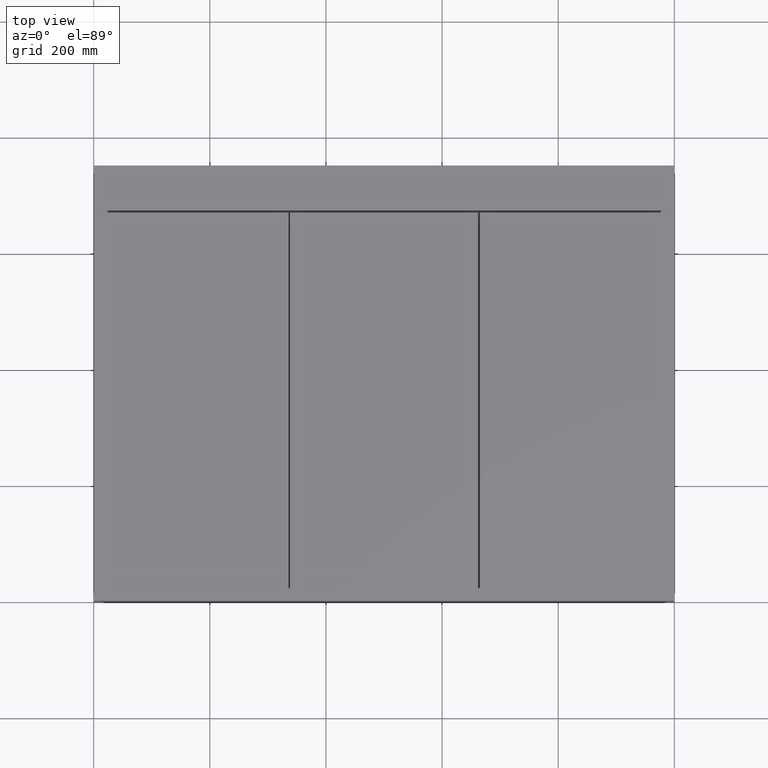
[diagram: clean part render]
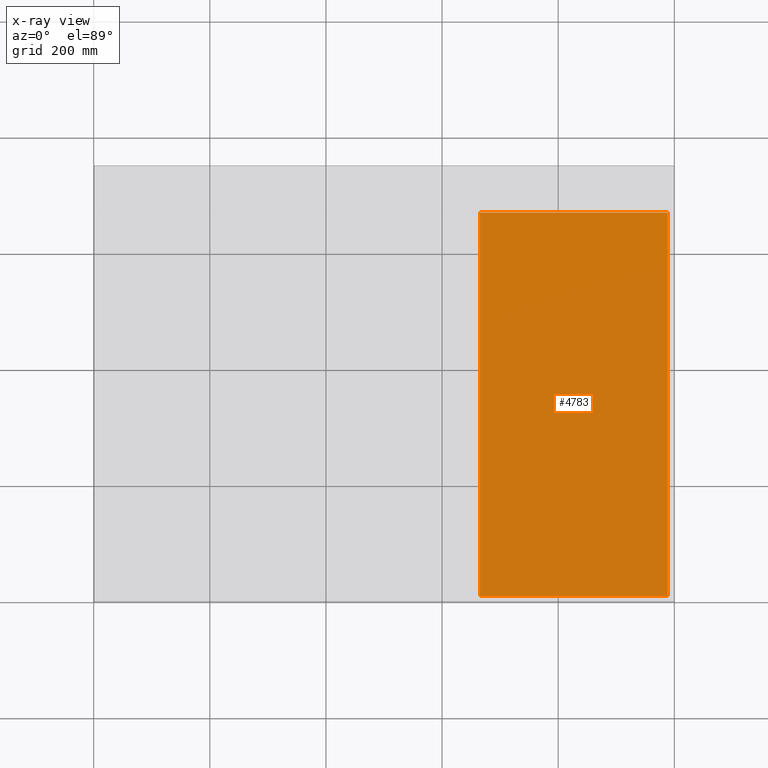
[diagram: x-ray — body ghosted, one internal face saturated and labeled with its STEP entity id]
A machine part, top view, then the same camera in x-ray: the body is ghosted and one INTERNAL B-rep face — a face not visible from any outside direction — is saturated and labeled: STEP entity #4783.
In plain terms, the highlighted planar face has unit normal (0, -0, 1).
Its self-contained STEP definition (entity closure, byte-faithful):
#349 = VECTOR ( 'NONE', #1878, 1000.000000000000000 ) ;
#765 = DIRECTION ( 'NONE',  ( 1.000000000000000000, 7.583646853459461296E-52, 0.0000000000000000000 ) ) ;
#1824 = CARTESIAN_POINT ( 'NONE',  ( 664.9999999999997726, 668.9999000000001388, -5.999999999999939604 ) ) ;
#1878 = DIRECTION ( 'NONE',  ( -1.679611486514833642E-16, 1.000000000000000000, 0.0000000000000000000 ) ) ;
#2301 = VERTEX_POINT ( 'NONE', #3915 ) ;
#2523 = EDGE_CURVE ( 'NONE', #15278, #3902, #14702, .T. ) ;
#2664 = ORIENTED_EDGE ( 'NONE', *, *, #10866, .F. ) ;
#2881 = DIRECTION ( 'NONE',  ( 0.0000000000000000000, -0.0000000000000000000, 1.000000000000000000 ) ) ;
#3902 = VERTEX_POINT ( 'NONE', #14363 ) ;
#3915 = CARTESIAN_POINT ( 'NONE',  ( 989.0000000000000000, 668.9999000000001388, -5.999999999999939604 ) ) ;
#4293 = FACE_OUTER_BOUND ( 'NONE', #15994, .T. ) ;
#4443 = DIRECTION ( 'NONE',  ( -1.000000000000000000, -7.583646853459461296E-52, 0.0000000000000000000 ) ) ;
#4783 = ADVANCED_FACE ( 'NONE', ( #4293 ), #10058, .F. ) ;
#5033 = ORIENTED_EDGE ( 'NONE', *, *, #2523, .F. ) ;
#5901 = EDGE_CURVE ( 'NONE', #3902, #9573, #7917, .T. ) ;
#6356 = VECTOR ( 'NONE', #765, 1000.000000000000000 ) ;
#6659 = ORIENTED_EDGE ( 'NONE', *, *, #5901, .F. ) ;
#7575 = DIRECTION ( 'NONE',  ( 1.679611486514833642E-16, -1.000000000000000000, 0.0000000000000000000 ) ) ;
#7586 = ORIENTED_EDGE ( 'NONE', *, *, #10330, .F. ) ;
#7917 = LINE ( 'NONE', #13635, #6356 ) ;
#8636 = DIRECTION ( 'NONE',  ( 1.000000000000000000, 7.583646853459461296E-52, 0.0000000000000000000 ) ) ;
#8639 = AXIS2_PLACEMENT_3D ( 'NONE', #15773, #2881, #8636 ) ;
#9055 = LINE ( 'NONE', #14753, #349 ) ;
#9573 = VERTEX_POINT ( 'NONE', #14746 ) ;
#10058 = PLANE ( 'NONE',  #8639 ) ;
#10330 = EDGE_CURVE ( 'NONE', #2301, #15278, #11606, .T. ) ;
#10866 = EDGE_CURVE ( 'NONE', #9573, #2301, #9055, .T. ) ;
#11606 = LINE ( 'NONE', #17326, #18224 ) ;
#13635 = CARTESIAN_POINT ( 'NONE',  ( 664.9999999999998863, 8.000000000000007105, -5.999999999999939604 ) ) ;
#14363 = CARTESIAN_POINT ( 'NONE',  ( 664.9999999999998863, 8.000000000000007105, -5.999999999999939604 ) ) ;
#14527 = VECTOR ( 'NONE', #7575, 1000.000000000000000 ) ;
#14702 = LINE ( 'NONE', #1824, #14527 ) ;
#14746 = CARTESIAN_POINT ( 'NONE',  ( 989.0000000000001137, 8.000000000000007105, -5.999999999999939604 ) ) ;
#14753 = CARTESIAN_POINT ( 'NONE',  ( 989.0000000000000000, 668.9999000000001388, -5.999999999999939604 ) ) ;
#15133 = CARTESIAN_POINT ( 'NONE',  ( 664.9999999999997726, 668.9999000000001388, -5.999999999999939604 ) ) ;
#15278 = VERTEX_POINT ( 'NONE', #15133 ) ;
#15773 = CARTESIAN_POINT ( 'NONE',  ( 0.0000000000000000000, 0.0000000000000000000, -5.999999999999939604 ) ) ;
#15994 = EDGE_LOOP ( 'NONE', ( #5033, #7586, #2664, #6659 ) ) ;
#17326 = CARTESIAN_POINT ( 'NONE',  ( 664.9999999999997726, 668.9999000000001388, -5.999999999999939604 ) ) ;
#18224 = VECTOR ( 'NONE', #4443, 1000.000000000000000 ) ;